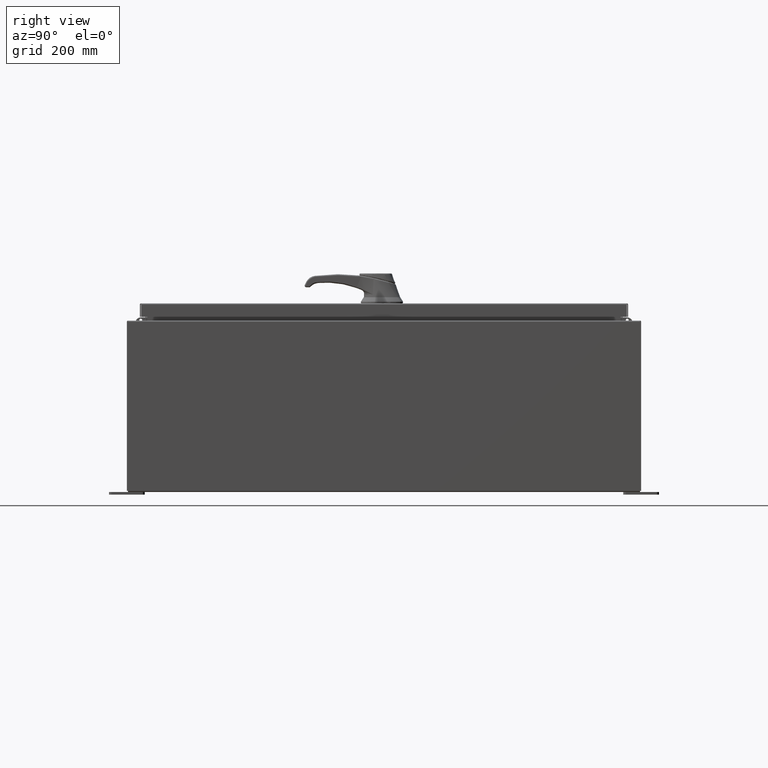
[diagram: clean part render]
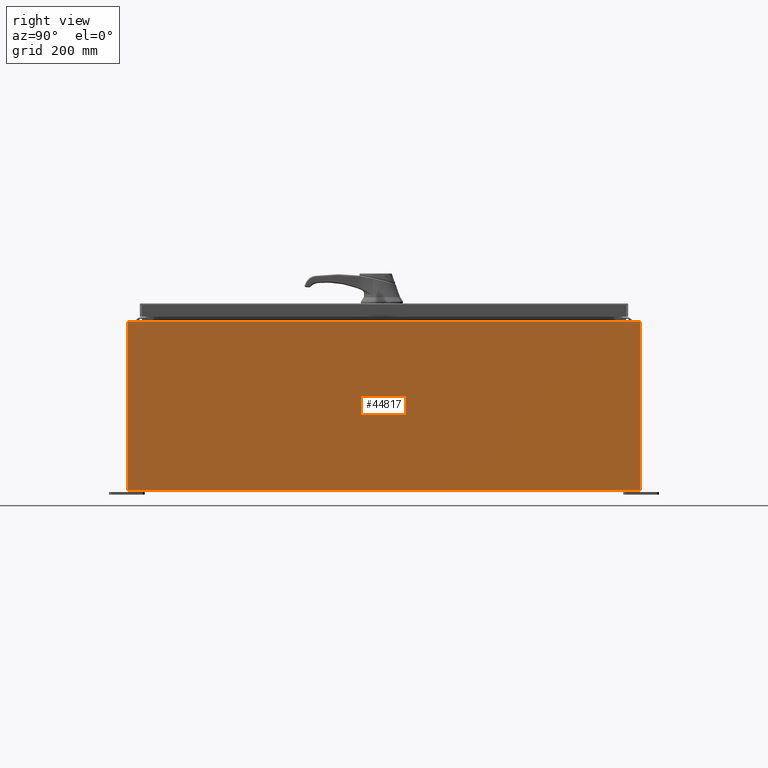
[diagram: same view with one face highlighted and labeled with its STEP entity id]
A machine part, right view. The second image highlights one B-rep face of the part: STEP entity #44817.
In plain terms, the highlighted planar face has unit normal (-1, 0, 0).
Its self-contained STEP definition (entity closure, byte-faithful):
#2478 = DIRECTION ( 'NONE',  ( -0.0000000000000000000, -1.000000000000000000, -0.0000000000000000000 ) ) ;
#13228 = CARTESIAN_POINT ( 'NONE',  ( 14.99999999999999800, -17.92530000000000000, 0.01300000000000022700 ) ) ;
#13359 = EDGE_CURVE ( 'NONE', #21699, #120138, #64760, .T. ) ;
#21699 = VERTEX_POINT ( 'NONE', #116629 ) ;
#22777 = EDGE_CURVE ( 'NONE', #77691, #99202, #34379, .T. ) ;
#30251 = CARTESIAN_POINT ( 'NONE',  ( 14.99999999999999800, 17.92530000000000000, -4.920599630825411400E-014 ) ) ;
#34379 = LINE ( 'NONE', #30251, #56846 ) ;
#44770 = AXIS2_PLACEMENT_3D ( 'NONE', #83665, #45500, #112595 ) ;
#44817 = ADVANCED_FACE ( 'NONE', ( #87240 ), #121822, .F. ) ;
#45500 = DIRECTION ( 'NONE',  ( -1.000000000000000000, 0.0000000000000000000, 3.482016343714355100E-015 ) ) ;
#48626 = EDGE_LOOP ( 'NONE', ( #114149, #60262, #51368, #69213 ) ) ;
#51014 = DIRECTION ( 'NONE',  ( -3.482016343714355500E-015, 0.0000000000000000000, -1.000000000000000000 ) ) ;
#51191 = EDGE_CURVE ( 'NONE', #77691, #120138, #75750, .T. ) ;
#51368 = ORIENTED_EDGE ( 'NONE', *, *, #51191, .F. ) ;
#56846 = VECTOR ( 'NONE', #97371, 39.37007874015748100 ) ;
#59977 = CARTESIAN_POINT ( 'NONE',  ( 15.00000000000004100, 17.92530000000000000, 11.83760000000000000 ) ) ;
#60262 = ORIENTED_EDGE ( 'NONE', *, *, #13359, .T. ) ;
#60640 = CARTESIAN_POINT ( 'NONE',  ( 14.99999999999999800, -17.92530000000000000, -5.249105881172690100E-014 ) ) ;
#64760 = LINE ( 'NONE', #60640, #93280 ) ;
#69213 = ORIENTED_EDGE ( 'NONE', *, *, #22777, .T. ) ;
#69228 = EDGE_CURVE ( 'NONE', #99202, #21699, #71234, .T. ) ;
#71234 = LINE ( 'NONE', #59977, #93742 ) ;
#75750 = LINE ( 'NONE', #107368, #107301 ) ;
#77691 = VERTEX_POINT ( 'NONE', #111459 ) ;
#83665 = CARTESIAN_POINT ( 'NONE',  ( 14.99999999999999800, 0.0000000000000000000, -5.249105881172690100E-014 ) ) ;
#87240 = FACE_OUTER_BOUND ( 'NONE', #48626, .T. ) ;
#93280 = VECTOR ( 'NONE', #51014, 39.37007874015748100 ) ;
#93742 = VECTOR ( 'NONE', #2478, 39.37007874015748100 ) ;
#97283 = DIRECTION ( 'NONE',  ( 2.122662239958547800E-031, -1.000000000000000000, 6.096072018129156600E-017 ) ) ;
#97371 = DIRECTION ( 'NONE',  ( 3.482016343714355500E-015, -1.832640180902292400E-016, 1.000000000000000000 ) ) ;
#99202 = VERTEX_POINT ( 'NONE', #103737 ) ;
#103737 = CARTESIAN_POINT ( 'NONE',  ( 15.00000000000004100, 17.92530000000000000, 11.83760000000000000 ) ) ;
#107301 = VECTOR ( 'NONE', #97283, 39.37007874015748100 ) ;
#107368 = CARTESIAN_POINT ( 'NONE',  ( 14.99999999999999800, -17.92530000000000000, 0.01299999999999984700 ) ) ;
#111459 = CARTESIAN_POINT ( 'NONE',  ( 14.99999999999999800, 17.92530000000000000, 0.01299999999999766100 ) ) ;
#112595 = DIRECTION ( 'NONE',  ( 3.482016343714355100E-015, 0.0000000000000000000, 1.000000000000000000 ) ) ;
#114149 = ORIENTED_EDGE ( 'NONE', *, *, #69228, .T. ) ;
#116629 = CARTESIAN_POINT ( 'NONE',  ( 15.00000000000004100, -17.92530000000000000, 11.83760000000000000 ) ) ;
#120138 = VERTEX_POINT ( 'NONE', #13228 ) ;
#121822 = PLANE ( 'NONE',  #44770 ) ;